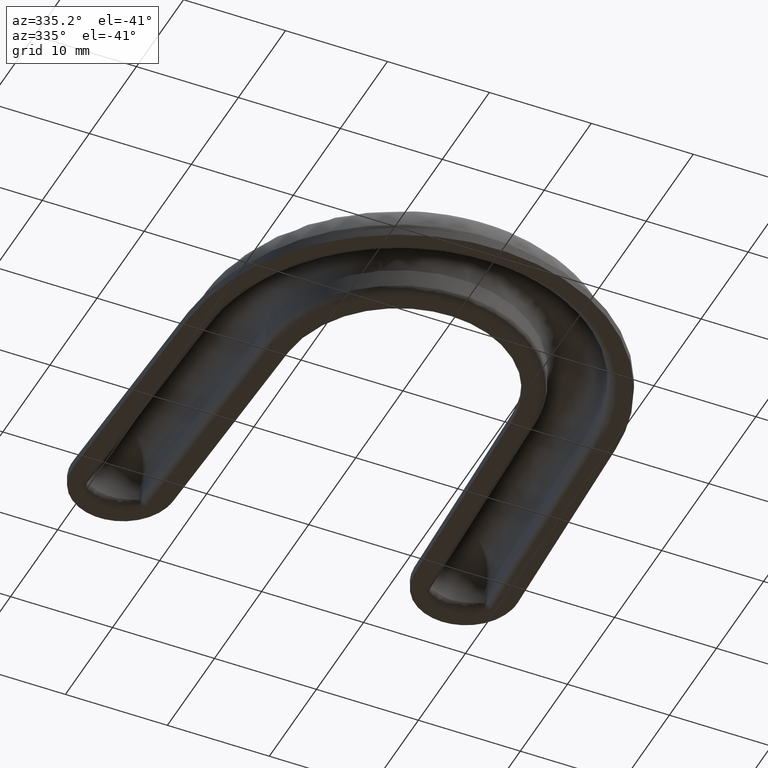
[diagram: clean part render]
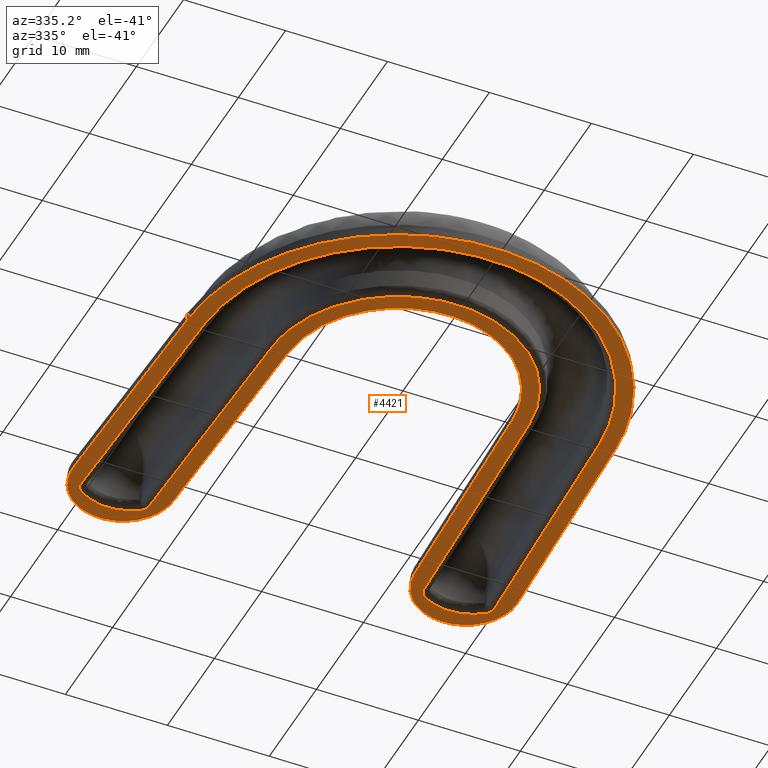
[diagram: same view with one face highlighted and labeled with its STEP entity id]
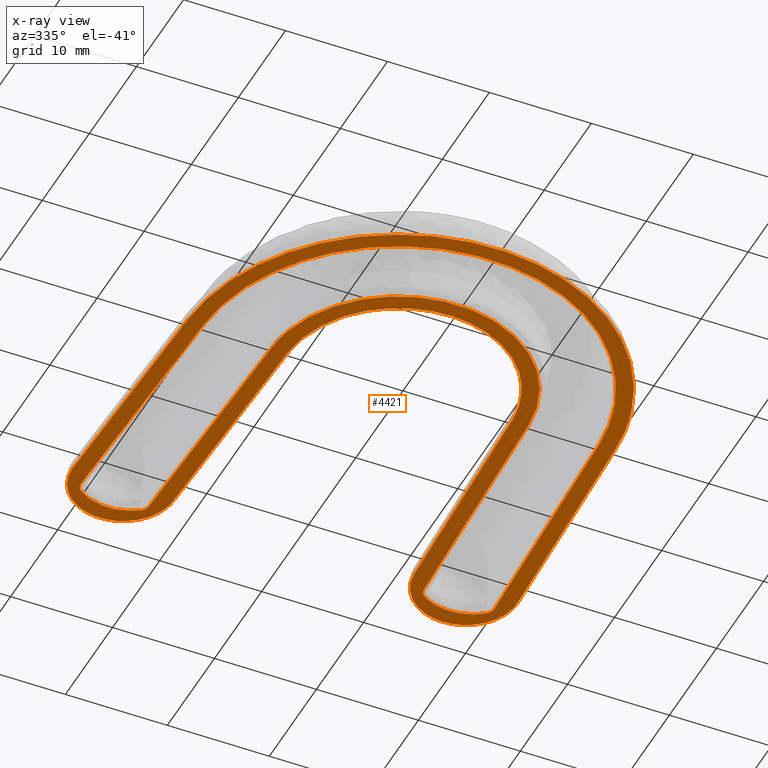
[diagram: x-ray of the same camera — body ghosted, the highlighted face saturated]
A machine part, auxiliary view. The second image highlights one B-rep face of the part: STEP entity #4421.
The next image is the same camera in x-ray: the body ghosted, the highlighted face saturated — about 0% of this face is hidden behind the body in this view.
In plain terms, the highlighted face is a freeform B-spline surface patch.
Its self-contained STEP definition (entity closure, byte-faithful):
#102=CARTESIAN_POINT('',(-13.922507351557501,45.540250990001901,4.889465E-016));
#103=VERTEX_POINT('',#102);
#104=CARTESIAN_POINT('',(-13.478454248655920,44.744912259695298,5.143347E-016));
#105=VERTEX_POINT('',#104);
#106=CARTESIAN_POINT('',(-13.922507351557501,45.540250990001901,4.889465E-016));
#107=CARTESIAN_POINT('',(-13.856405474797350,45.496102399367309,4.928922E-016));
#108=CARTESIAN_POINT('',(-13.796551927162881,45.444888575263853,-1.115745E-016));
#109=CARTESIAN_POINT('',(-13.716030221978720,45.357598754620149,-1.068431E-016));
#110=CARTESIAN_POINT('',(-13.690828093461841,45.326773841105982,-1.097593E-016));
#111=CARTESIAN_POINT('',(-13.644724962234831,45.263070347946183,-1.070811E-016));
#112=CARTESIAN_POINT('',(-13.602592595728961,45.196972172180807,-1.053947E-016));
#113=CARTESIAN_POINT('',(-13.568329336417580,45.126128307500807,-1.092619E-016));
#114=CARTESIAN_POINT('',(-13.538132023288149,45.052832358328068,-1.075785E-016));
#115=CARTESIAN_POINT('',(-13.525238467763220,45.015315991897133,-1.089818E-016));
#116=CARTESIAN_POINT('',(-13.493547157449690,44.901852485724547,-1.072970E-016));
#117=CARTESIAN_POINT('',(-13.481364715668720,44.824347651335763,5.143347E-016));
#118=CARTESIAN_POINT('',(-13.478454248655920,44.744912259695298,5.143347E-016));
#119=B_SPLINE_CURVE_WITH_KNOTS('',3,(#106,#107,#108,#109,#110,#111,#112,#113,#114,#115,#116,#117,#118),.UNSPECIFIED.,.F.,.U.,(4,2,2,1,2,2,4),(0.0,0.249999999999983,0.374999999999982,0.499999999999981,0.624999999999981,0.749999999999980,1.0),.UNSPECIFIED.);
#120=EDGE_CURVE('',#103,#105,#119,.T.);
#189=CARTESIAN_POINT('',(-19.889235396985850,45.321633624144212,1.233567E-016));
#190=VERTEX_POINT('',#189);
#206=CARTESIAN_POINT('',(-13.922507351557520,45.540250990001873,4.336809E-016));
#207=CARTESIAN_POINT('',(-16.984814043344024,47.585526119237130,4.336809E-016));
#208=CARTESIAN_POINT('',(-19.889235396985882,45.321633624144233,4.336809E-016));
#216=(BOUNDED_CURVE()B_SPLINE_CURVE(2,(#206,#207,#208),.UNSPECIFIED.,.F.,.U.)CURVE()GEOMETRIC_REPRESENTATION_ITEM()QUASI_UNIFORM_CURVE()RATIONAL_B_SPLINE_CURVE((1.0,0.810687996509779,1.0))REPRESENTATION_ITEM(''));
#217=EDGE_CURVE('',#103,#190,#216,.T.);
#296=CARTESIAN_POINT('',(-20.273894521216551,44.495931332602900,9.796851E-017));
#297=VERTEX_POINT('',#296);
#311=CARTESIAN_POINT('',(-20.273894521216551,44.495931332602900,9.796851E-017));
#312=CARTESIAN_POINT('',(-20.276804984571850,44.575366624418862,9.796851E-017));
#313=CARTESIAN_POINT('',(-20.270338312361432,44.653873430911432,-5.432377E-016));
#314=CARTESIAN_POINT('',(-20.246738726903502,44.770257361797512,-5.415328E-016));
#315=CARTESIAN_POINT('',(-20.236512180715440,44.808739959562232,-5.429385E-016));
#316=CARTESIAN_POINT('',(-20.211876568504572,44.883420033745537,-5.412637E-016));
#317=CARTESIAN_POINT('',(-20.182975557668211,44.956283371646883,-5.385626E-016));
#318=CARTESIAN_POINT('',(-20.145620102390861,45.025545757489837,-5.434532E-016));
#319=CARTESIAN_POINT('',(-20.103895486118081,45.092947212151593,-5.407490E-016));
#320=CARTESIAN_POINT('',(-20.081035860291610,45.125371087205181,-5.436673E-016));
#321=CARTESIAN_POINT('',(-20.007622321147139,45.217506526952022,-5.389686E-016));
#322=CARTESIAN_POINT('',(-19.951929129870560,45.272766103187180,1.194109E-016));
#323=CARTESIAN_POINT('',(-19.889235396985850,45.321633624144212,1.233567E-016));
#324=B_SPLINE_CURVE_WITH_KNOTS('',3,(#311,#312,#313,#314,#315,#316,#317,#318,#319,#320,#321,#322,#323),.UNSPECIFIED.,.F.,.U.,(4,2,2,1,2,2,4),(0.0,0.250000000000004,0.375000000000006,0.500000000000009,0.625000000000011,0.750000000000013,1.0),.UNSPECIFIED.);
#325=EDGE_CURVE('',#297,#190,#324,.T.);
#402=CARTESIAN_POINT('',(19.889235695671800,45.321633391329200,2.557372E-015));
#403=VERTEX_POINT('',#402);
#404=CARTESIAN_POINT('',(20.273894761335601,44.495931145409337,2.579058E-015));
#405=VERTEX_POINT('',#404);
#406=CARTESIAN_POINT('',(19.889235695671800,45.321633391329200,2.557372E-015));
#407=CARTESIAN_POINT('',(19.951929508932309,45.272765800236897,2.561099E-015));
#408=CARTESIAN_POINT('',(20.007874709016470,45.217309176811042,1.948688E-015));
#409=CARTESIAN_POINT('',(20.081792584503589,45.124360779897479,1.953002E-015));
#410=CARTESIAN_POINT('',(20.104671350950991,45.091774210856578,1.950375E-015));
#411=CARTESIAN_POINT('',(20.145989002563969,45.024867672194283,1.952753E-015));
#412=CARTESIAN_POINT('',(20.183171636041578,44.955863629307949,1.948510E-015));
#413=CARTESIAN_POINT('',(20.212158282381719,44.882702139687929,1.950891E-015));
#414=CARTESIAN_POINT('',(20.236910783588112,44.807392863283830,1.952237E-015));
#415=CARTESIAN_POINT('',(20.247024296329261,44.769033532604389,1.951175E-015));
#416=CARTESIAN_POINT('',(20.270327302632129,44.653555070563151,1.952342E-015));
#417=CARTESIAN_POINT('',(20.276805228236491,44.575366533995343,2.579414E-015));
#418=CARTESIAN_POINT('',(20.273894761335601,44.495931145409337,2.579058E-015));
#419=B_SPLINE_CURVE_WITH_KNOTS('',3,(#406,#407,#408,#409,#410,#411,#412,#413,#414,#415,#416,#417,#418),.UNSPECIFIED.,.F.,.U.,(4,2,2,1,2,2,4),(0.0,0.249999999999995,0.374999999999997,0.499999999999998,0.624999999999999,0.750000000000000,1.0),.UNSPECIFIED.);
#420=EDGE_CURVE('',#403,#405,#419,.T.);
#489=CARTESIAN_POINT('',(13.922507666480140,45.540251200334602,2.192762E-015));
#490=VERTEX_POINT('',#489);
#506=CARTESIAN_POINT('',(19.889235695671790,45.321633391329193,2.493665E-015));
#507=CARTESIAN_POINT('',(16.984814510168832,47.585526102132860,2.493665E-015));
#508=CARTESIAN_POINT('',(13.922507666480159,45.540251200334573,2.493665E-015));
#516=(BOUNDED_CURVE()B_SPLINE_CURVE(2,(#506,#507,#508),.UNSPECIFIED.,.F.,.U.)CURVE()GEOMETRIC_REPRESENTATION_ITEM()QUASI_UNIFORM_CURVE()RATIONAL_B_SPLINE_CURVE((1.0,0.810687996509782,1.0))REPRESENTATION_ITEM(''));
#517=EDGE_CURVE('',#403,#490,#516,.T.);
#596=CARTESIAN_POINT('',(13.478454501830081,44.744912428814857,2.163808E-015));
#597=VERTEX_POINT('',#596);
#611=CARTESIAN_POINT('',(13.478454501830081,44.744912428814857,2.163808E-015));
#612=CARTESIAN_POINT('',(13.481364965297290,44.824347723685342,2.164164E-015));
#613=CARTESIAN_POINT('',(13.493559475039010,44.902170798006502,1.516405E-015));
#614=CARTESIAN_POINT('',(13.525612831894829,45.016515640937897,1.518622E-015));
#615=CARTESIAN_POINT('',(13.538628138540250,45.054146672140163,1.516883E-015));
#616=CARTESIAN_POINT('',(13.568662830765550,45.126823660459642,1.518883E-015));
#617=CARTESIAN_POINT('',(13.602818535221330,45.197376638918222,1.521872E-015));
#618=CARTESIAN_POINT('',(13.645142495857231,45.263719618545942,1.516387E-015));
#619=CARTESIAN_POINT('',(13.691687718622470,45.327886918538013,1.519379E-015));
#620=CARTESIAN_POINT('',(13.716858851733139,45.358550974995573,1.516188E-015));
#621=CARTESIAN_POINT('',(13.796818080392880,45.445066926261767,1.521274E-015));
#622=CARTESIAN_POINT('',(13.856405875012779,45.496102673765257,2.188619E-015));
#623=CARTESIAN_POINT('',(13.922507666480140,45.540251200334602,2.192762E-015));
#624=B_SPLINE_CURVE_WITH_KNOTS('',3,(#611,#612,#613,#614,#615,#616,#617,#618,#619,#620,#621,#622,#623),.UNSPECIFIED.,.F.,.U.,(4,2,2,1,2,2,4),(0.0,0.249999999999983,0.374999999999985,0.499999999999988,0.624999999999990,0.749999999999992,1.0),.UNSPECIFIED.);
#625=EDGE_CURVE('',#597,#490,#624,.T.);
#2820=CARTESIAN_POINT('',(19.386991109600650,20.289671808285949,2.470520E-015));
#2821=VERTEX_POINT('',#2820);
#2843=CARTESIAN_POINT('',(19.386991109600650,20.289671808285949,2.470520E-015));
#2844=CARTESIAN_POINT('',(20.273894761335601,44.495931145409337,2.579058E-015));
#2845=QUASI_UNIFORM_CURVE('',1,(#2843,#2844),.UNSPECIFIED.,.F.,.U.);
#2846=EDGE_CURVE('',#2821,#405,#2845,.T.);
#2874=CARTESIAN_POINT('',(-19.386991109600650,20.289671808285849,9.796851E-017));
#2875=VERTEX_POINT('',#2874);
#2907=CARTESIAN_POINT('',(-19.386991109600672,20.289671808285849,1.409463E-015));
#2908=CARTESIAN_POINT('',(-18.702212304630844,1.600000246812402,1.409463E-015));
#2909=CARTESIAN_POINT('',(-2.528841E-015,1.600000246812401,1.409463E-015));
#2910=CARTESIAN_POINT('',(18.702212304630926,1.600000246812402,1.409463E-015));
#2911=CARTESIAN_POINT('',(19.386991109600661,20.289671808285949,1.409463E-015));
#2919=(BOUNDED_CURVE()B_SPLINE_CURVE(2,(#2907,#2908,#2909,#2910,#2911),.UNSPECIFIED.,.F.,.U.)B_SPLINE_CURVE_WITH_KNOTS((3,2,3),(0.0,0.500000000000000,1.0),.UNSPECIFIED.)CURVE()GEOMETRIC_REPRESENTATION_ITEM()RATIONAL_B_SPLINE_CURVE((1.0,0.719935710917587,1.0,0.719935710917587,1.0))REPRESENTATION_ITEM(''));
#2920=EDGE_CURVE('',#2875,#2821,#2919,.T.);
#2939=CARTESIAN_POINT('',(-20.273894521216551,44.495931332602900,9.796851E-017));
#2940=CARTESIAN_POINT('',(-19.386991109600650,20.289671808285849,9.796851E-017));
#2941=QUASI_UNIFORM_CURVE('',1,(#2939,#2940),.UNSPECIFIED.,.F.,.U.);
#2942=EDGE_CURVE('',#297,#2875,#2941,.T.);
#2968=CARTESIAN_POINT('',(-12.591550840400879,20.538652827105849,5.143347E-016));
#2969=VERTEX_POINT('',#2968);
#2991=CARTESIAN_POINT('',(-12.591550840400879,20.538652827105849,5.143347E-016));
#2992=CARTESIAN_POINT('',(-13.478454248655920,44.744912259695298,5.143347E-016));
#2993=QUASI_UNIFORM_CURVE('',1,(#2991,#2992),.UNSPECIFIED.,.F.,.U.);
#2994=EDGE_CURVE('',#2969,#105,#2993,.T.);
#3022=CARTESIAN_POINT('',(12.591551087047581,20.538652818068901,2.055270E-015));
#3023=VERTEX_POINT('',#3022);
#3055=CARTESIAN_POINT('',(12.591551087047581,20.538652818068901,2.055270E-015));
#3056=CARTESIAN_POINT('',(12.146797598989673,8.400000246812001,1.409463E-015));
#3057=CARTESIAN_POINT('',(-2.528841E-015,8.400000246812001,1.409463E-015));
#3058=CARTESIAN_POINT('',(-12.146797598989629,8.400000246812001,1.409463E-015));
#3059=CARTESIAN_POINT('',(-12.591550840400890,20.538652827105839,1.409463E-015));
#3067=(BOUNDED_CURVE()B_SPLINE_CURVE(2,(#3055,#3056,#3057,#3058,#3059),.UNSPECIFIED.,.F.,.U.)B_SPLINE_CURVE_WITH_KNOTS((3,2,3),(0.0,0.500000000000000,1.0),.UNSPECIFIED.)CURVE()GEOMETRIC_REPRESENTATION_ITEM()RATIONAL_B_SPLINE_CURVE((1.0,0.719935710917585,1.0,0.719935710917585,1.0))REPRESENTATION_ITEM(''));
#3068=EDGE_CURVE('',#3023,#2969,#3067,.T.);
#3087=CARTESIAN_POINT('',(13.478454501830081,44.744912428814857,2.163808E-015));
#3088=CARTESIAN_POINT('',(12.591551087047581,20.538652818068901,2.055270E-015));
#3089=QUASI_UNIFORM_CURVE('',1,(#3087,#3088),.UNSPECIFIED.,.F.,.U.);
#3090=EDGE_CURVE('',#597,#3023,#3089,.T.);
#3770=CARTESIAN_POINT('',(-21.813573162670000,42.820278464691050,0.0));
#3771=VERTEX_POINT('',#3770);
#3794=CARTESIAN_POINT('',(-11.820278649140301,43.186427021779252,6.123032E-016));
#3795=VERTEX_POINT('',#3794);
#3801=CARTESIAN_POINT('',(-21.813573162669989,42.820278464691050,0.0));
#3802=CARTESIAN_POINT('',(-21.996647441214080,47.816925721455895,0.0));
#3803=CARTESIAN_POINT('',(-17.000000184449249,47.999999999999993,0.0));
#3804=CARTESIAN_POINT('',(-12.003352927684423,48.183074278544076,0.0));
#3805=CARTESIAN_POINT('',(-11.820278649140320,43.186427021779252,0.0));
#3813=(BOUNDED_CURVE()B_SPLINE_CURVE(2,(#3801,#3802,#3803,#3804,#3805),.UNSPECIFIED.,.F.,.U.)B_SPLINE_CURVE_WITH_KNOTS((3,2,3),(0.0,0.500000000000000,1.0),.UNSPECIFIED.)CURVE()GEOMETRIC_REPRESENTATION_ITEM()RATIONAL_B_SPLINE_CURVE((1.0,0.707106781186548,1.0,0.707106781186548,1.0))REPRESENTATION_ITEM(''));
#3814=EDGE_CURVE('',#3771,#3795,#3813,.T.);
#3839=CARTESIAN_POINT('',(11.820278649140199,43.186427021779252,6.123032E-016));
#3840=VERTEX_POINT('',#3839);
#3865=CARTESIAN_POINT('',(21.813573162669901,42.820278464691050,0.0));
#3866=VERTEX_POINT('',#3865);
#3872=CARTESIAN_POINT('',(11.820278649140199,43.186427021779252,6.123032E-016));
#3873=CARTESIAN_POINT('',(12.003353174331027,48.183074269507081,0.0));
#3874=CARTESIAN_POINT('',(17.000000431095849,47.999999990962984,0.0));
#3875=CARTESIAN_POINT('',(21.996647687860673,47.816925712418879,0.0));
#3876=CARTESIAN_POINT('',(21.813573162669901,42.820278464691050,0.0));
#3884=(BOUNDED_CURVE()B_SPLINE_CURVE(2,(#3872,#3873,#3874,#3875,#3876),.UNSPECIFIED.,.F.,.U.)B_SPLINE_CURVE_WITH_KNOTS((3,2,3),(0.0,0.500000000000000,1.0),.UNSPECIFIED.)CURVE()GEOMETRIC_REPRESENTATION_ITEM()RATIONAL_B_SPLINE_CURVE((1.0,0.707106781186548,1.0,0.707106781186548,1.0))REPRESENTATION_ITEM(''));
#3885=EDGE_CURVE('',#3840,#3866,#3884,.T.);
#3999=CARTESIAN_POINT('',(10.992623964882640,20.597236587203000,6.123032E-016));
#4000=VERTEX_POINT('',#3999);
#4001=CARTESIAN_POINT('',(10.992623964882640,20.597236587203000,6.123032E-016));
#4002=CARTESIAN_POINT('',(11.820278649140199,43.186427021779252,6.123032E-016));
#4003=QUASI_UNIFORM_CURVE('',1,(#4001,#4002),.UNSPECIFIED.,.F.,.U.);
#4004=EDGE_CURVE('',#4000,#3840,#4003,.T.);
#4019=CARTESIAN_POINT('',(20.985918478412302,20.231088030114801,0.0));
#4020=VERTEX_POINT('',#4019);
#4021=CARTESIAN_POINT('',(20.985918478412302,20.231088030114801,0.0));
#4022=CARTESIAN_POINT('',(21.813573162669901,42.820278464691050,0.0));
#4023=QUASI_UNIFORM_CURVE('',1,(#4021,#4022),.UNSPECIFIED.,.F.,.U.);
#4024=EDGE_CURVE('',#4020,#3866,#4023,.T.);
#4248=CARTESIAN_POINT('',(-10.992623718235921,20.597236596239949,6.123032E-016));
#4249=VERTEX_POINT('',#4248);
#4250=CARTESIAN_POINT('',(-10.992623718235921,20.597236596239949,6.123032E-016));
#4251=CARTESIAN_POINT('',(-10.604347317949653,9.999999999999975,6.123032E-016));
#4252=CARTESIAN_POINT('',(2.431654E-014,10.0,6.123032E-016));
#4253=CARTESIAN_POINT('',(10.604347317949705,10.000000000000027,6.123032E-016));
#4254=CARTESIAN_POINT('',(10.992623964882640,20.597236587202989,6.123032E-016));
#4262=(BOUNDED_CURVE()B_SPLINE_CURVE(2,(#4250,#4251,#4252,#4253,#4254),.UNSPECIFIED.,.F.,.U.)B_SPLINE_CURVE_WITH_KNOTS((3,2,3),(0.0,0.500000000000000,1.0),.UNSPECIFIED.)CURVE()GEOMETRIC_REPRESENTATION_ITEM()RATIONAL_B_SPLINE_CURVE((1.0,0.719935710917587,1.0,0.719935710917587,1.0))REPRESENTATION_ITEM(''));
#4263=EDGE_CURVE('',#4249,#4000,#4262,.T.);
#4291=CARTESIAN_POINT('',(-20.985918231765599,20.231088039151700,0.0));
#4292=VERTEX_POINT('',#4291);
#4293=CARTESIAN_POINT('',(-20.985918231765599,20.231088039151700,0.0));
#4294=CARTESIAN_POINT('',(-20.244663061540241,-4.857226E-014,0.0));
#4295=CARTESIAN_POINT('',(4.871109E-014,0.0,0.0));
#4296=CARTESIAN_POINT('',(20.244663061540354,4.857226E-014,0.0));
#4297=CARTESIAN_POINT('',(20.985918478412309,20.231088030114801,0.0));
#4305=(BOUNDED_CURVE()B_SPLINE_CURVE(2,(#4293,#4294,#4295,#4296,#4297),.UNSPECIFIED.,.F.,.U.)B_SPLINE_CURVE_WITH_KNOTS((3,2,3),(0.0,0.500000000000000,1.0),.UNSPECIFIED.)CURVE()GEOMETRIC_REPRESENTATION_ITEM()RATIONAL_B_SPLINE_CURVE((1.0,0.719935710917587,1.0,0.719935710917587,1.0))REPRESENTATION_ITEM(''));
#4306=EDGE_CURVE('',#4292,#4020,#4305,.T.);
#4377=CARTESIAN_POINT('',(-11.820278649140301,43.186427021779252,6.123032E-016));
#4378=CARTESIAN_POINT('',(-10.992623718235921,20.597236596239949,6.123032E-016));
#4379=QUASI_UNIFORM_CURVE('',1,(#4377,#4378),.UNSPECIFIED.,.F.,.U.);
#4380=EDGE_CURVE('',#3795,#4249,#4379,.T.);
#4388=CARTESIAN_POINT('',(23.992749856143622,-2.397599908310616,6.123032E-016));
#4389=CARTESIAN_POINT('',(-23.992750246200799,-2.397599908310616,6.123032E-016));
#4390=CARTESIAN_POINT('',(23.992749856143622,50.397601222676442,6.123032E-016));
#4391=CARTESIAN_POINT('',(-23.992750246200799,50.397601222676442,6.123032E-016));
#4392=B_SPLINE_SURFACE_WITH_KNOTS('',1,1,((#4388,#4390),(#4389,#4391)),.UNSPECIFIED.,.F.,.F.,.U.,(2,2),(2,2),(0.0,47.985500102344417),(0.0,52.795201130987053),.UNSPECIFIED.);
#4393=ORIENTED_EDGE('',*,*,#3885,.T.);
#4394=ORIENTED_EDGE('',*,*,#4024,.F.);
#4395=ORIENTED_EDGE('',*,*,#4306,.F.);
#4396=CARTESIAN_POINT('',(-21.813573162670000,42.820278464691050,0.0));
#4397=CARTESIAN_POINT('',(-20.985918231765599,20.231088039151700,0.0));
#4398=QUASI_UNIFORM_CURVE('',1,(#4396,#4397),.UNSPECIFIED.,.F.,.U.);
#4399=EDGE_CURVE('',#3771,#4292,#4398,.T.);
#4400=ORIENTED_EDGE('',*,*,#4399,.F.);
#4401=ORIENTED_EDGE('',*,*,#3814,.T.);
#4402=ORIENTED_EDGE('',*,*,#4380,.T.);
#4403=ORIENTED_EDGE('',*,*,#4263,.T.);
#4404=ORIENTED_EDGE('',*,*,#4004,.T.);
#4405=EDGE_LOOP('',(#4393,#4394,#4395,#4400,#4401,#4402,#4403,#4404));
#4406=FACE_OUTER_BOUND('',#4405,.T.);
#4407=ORIENTED_EDGE('',*,*,#325,.F.);
#4408=ORIENTED_EDGE('',*,*,#2942,.T.);
#4409=ORIENTED_EDGE('',*,*,#2920,.T.);
#4410=ORIENTED_EDGE('',*,*,#2846,.T.);
#4411=ORIENTED_EDGE('',*,*,#420,.F.);
#4412=ORIENTED_EDGE('',*,*,#517,.T.);
#4413=ORIENTED_EDGE('',*,*,#625,.F.);
#4414=ORIENTED_EDGE('',*,*,#3090,.T.);
#4415=ORIENTED_EDGE('',*,*,#3068,.T.);
#4416=ORIENTED_EDGE('',*,*,#2994,.T.);
#4417=ORIENTED_EDGE('',*,*,#120,.F.);
#4418=ORIENTED_EDGE('',*,*,#217,.T.);
#4419=EDGE_LOOP('',(#4407,#4408,#4409,#4410,#4411,#4412,#4413,#4414,#4415,#4416,#4417,#4418));
#4420=FACE_BOUND('',#4419,.T.);
#4421=ADVANCED_FACE('',(#4406,#4420),#4392,.T.);